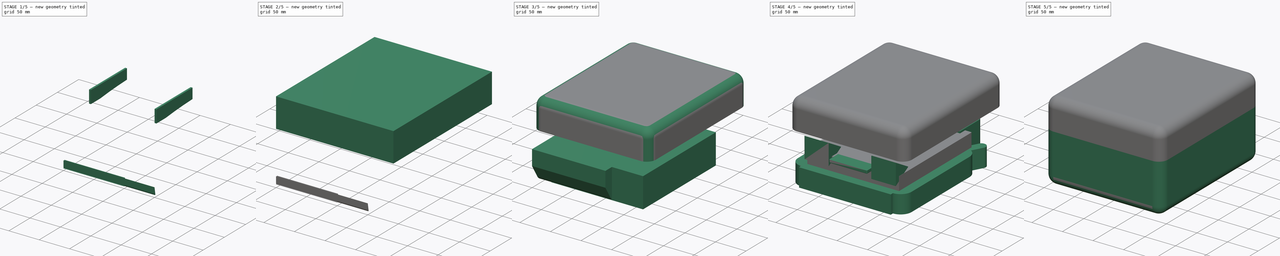
[diagram: build sequence overview — one tinted view per stage of 5, left to right]
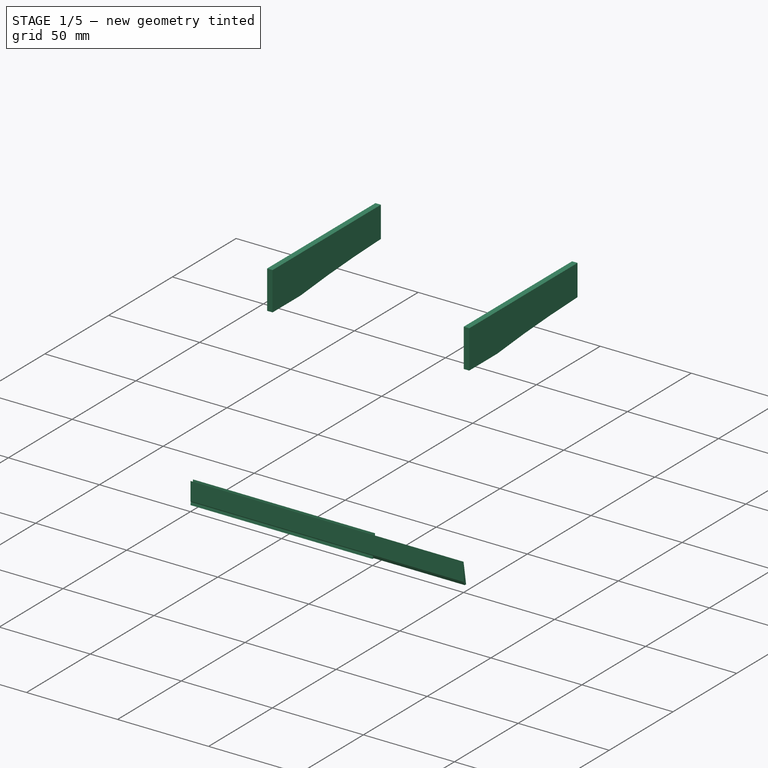
[diagram: stage 1 of 5 — iso view after this stage's code; geometry added in this stage tinted green]
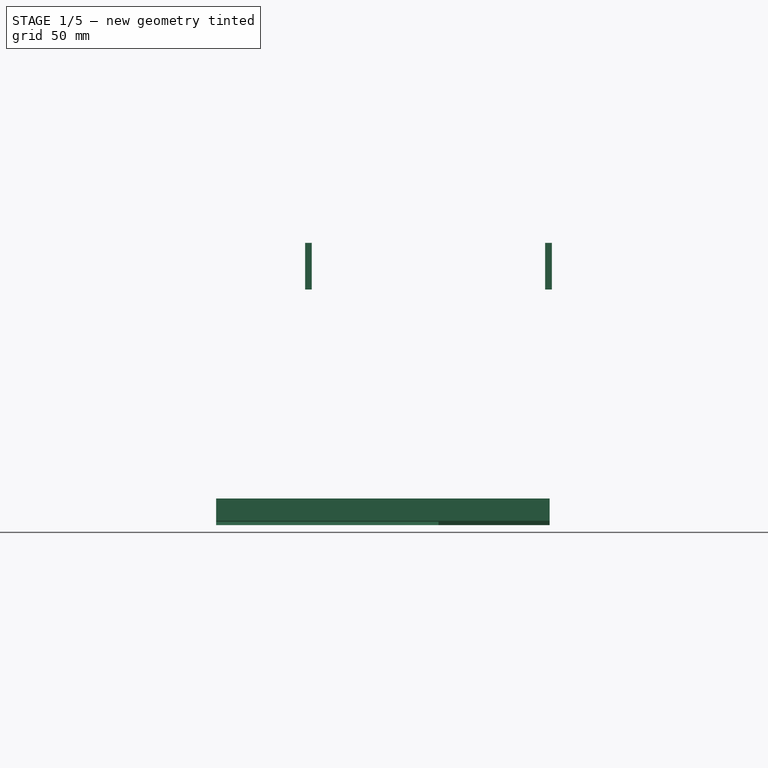
[diagram: stage 1 of 5 — front view after this stage's code; geometry added in this stage tinted green]
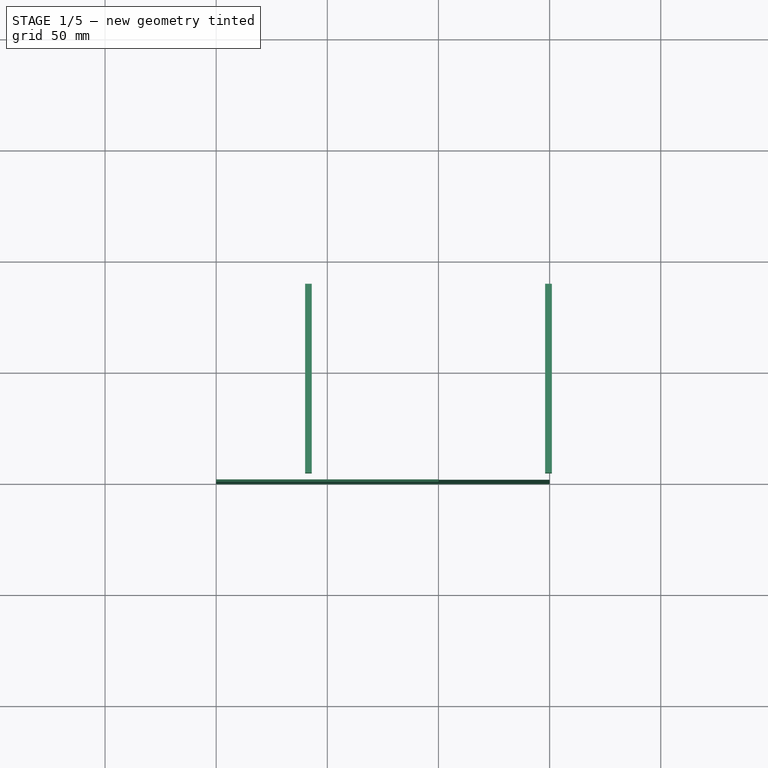
[diagram: stage 1 of 5 — top view after this stage's code; geometry added in this stage tinted green]
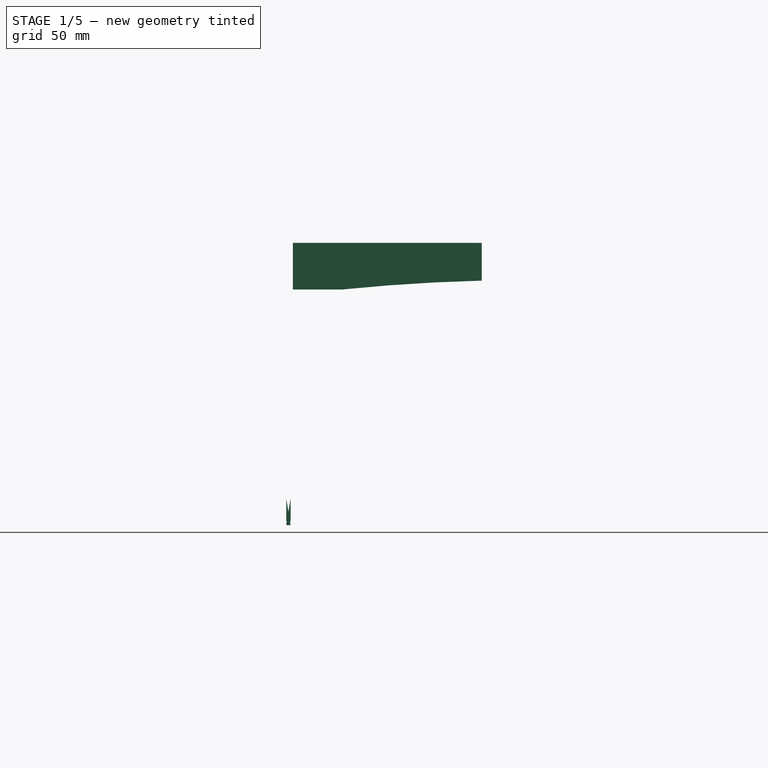
[diagram: stage 1 of 5 — right view after this stage's code; geometry added in this stage tinted green]
FCSTD DOCUMENT  (FreeCAD 0.18R14555 (Git shallow))
Label: JumperT16-HardCase-withInternalModule
License: All rights reserved
LicenseURL: http://en.wikipedia.org/wiki/All_rights_reserved
objects: PartDesign::Body×7, Sketcher::SketchObject×6, PartDesign::Pad×6, Part::Fillet×6, Part::Box×4, Part::MultiFuse×4, Image::ImagePlane×3, Part::Cut×3, Part::Prism×2, App::Part×2, App::FeaturePython×1, PartDesign::FeatureBase×1, Part::Chamfer×1
note: 46 computed .brp shape members not serialized (recipe doc carries the construction recipe); baked Part::Feature solids carry a one-line shape summary decoded from their .brp

FEATURE [Sketcher::SketchObject] Sketch004
  MapMode = 5
  Placement = pos=(0,0,0) rot=(0.57735,0.57735,0.57735;2.0944rad)
  Support = -> [YZ_Plane006]
  sketch-geometry (5):
    g0: LineSegment StartX=88 StartY=4 StartZ=0 EndX=88 EndY=21 EndZ=0
    g1: LineSegment StartX=88 StartY=21 StartZ=0 EndX=3 EndY=21 EndZ=0
    g2: ArcOfCircle CenterX=108.42 CenterY=-815.746 CenterZ=0 NormalX=0 NormalY=0 NormalZ=1 AngleXU=0 Radius=820 StartAngle=1.5957 EndAngle=1.6727
    g3: LineSegment StartX=3 StartY=21 StartZ=0 EndX=3 EndY=0 EndZ=0
    g4: LineSegment StartX=3 StartY=0 StartZ=0 EndX=25 EndY=0 EndZ=0
  constraints (16):
    c: Coincident(g0,g1)
    c: Horizontal(g1)
    c: Vertical(g0)
    c: Coincident(g2,g0)
    c: Radius(g2) = 820
    c: DistanceY(g2,g1) = 21
    c: DistanceY(g0,g0) = 17
    c: DistanceX(g-1,g1) = 3
    c: Coincident(g1,g3)
    c: Vertical(g3)
    c: Coincident(g3,g4)
    c: Coincident(g4,g2)
    c: Horizontal(g4)
    c: DistanceX(g1,g1) = 85
    c: PointOnObject(g3,g-1)
    c: DistanceX(g4,g4) = 22
FEATURE [PartDesign::Pad] Pad004
  Length = 3
  Length2 = 100
  Placement = pos=(0,0,0) rot=(0.57735,0.57735,0.57735;2.0944rad)
  Profile = -> Sketch004
  Type = 0
FEATURE [PartDesign::Body] Body004  label="LeftStand"
  Group = -> [Sketch004,Pad004]
  Origin = -> Origin006
  Placement = pos=(40,0,106) rot=(0,0,1;0rad)
  Tip = -> Pad004
FEATURE [PartDesign::FeatureBase] Clone
  BaseFeature = -> Body004
  Placement = pos=(40,0,106) rot=(0,0,1;0rad)
FEATURE [PartDesign::Body] Body005  label="RightStend"
  BaseFeature = -> Body004
  Group = -> [Clone]
  Origin = -> Origin007
  Placement = pos=(108,0,0) rot=(0,0,1;0rad)
  Tip = -> Clone
FEATURE [Part::MultiFuse] Fusion002
  Shapes = -> [Body005,Body004]
FEATURE [Sketcher::SketchObject] Sketch005
  MapMode = 5
  Placement = pos=(0,0,0) rot=(0.57735,0.57735,0.57735;2.0944rad)
  Support = -> [YZ_Plane008]
  sketch-geometry (4):
    g0: LineSegment StartX=0 StartY=12 StartZ=0 EndX=0 EndY=2 EndZ=0
    g1: LineSegment StartX=0 StartY=2 StartZ=0 EndX=1 EndY=0 EndZ=0
    g2: LineSegment StartX=1 StartY=0 StartZ=0 EndX=2 EndY=0 EndZ=0
    g3: LineSegment StartX=2 StartY=0 StartZ=0 EndX=0 EndY=12 EndZ=0
  constraints (12):
    c: Vertical(g0)
    c: Coincident(g0,g1)
    c: Coincident(g1,g2)
    c: Coincident(g2,g3)
    c: Coincident(g3,g0)
    c: Horizontal(g2)
    c: PointOnObject(g0,g-2)
    c: DistanceX(g1,g1) = 1
    c: DistanceX(g2,g2) = 1
    c: DistanceY(g0,g0) = 10
    c: DistanceY(g1,g1) = 2
    c: PointOnObject(g1,g-1)
FEATURE [PartDesign::Pad] Pad005
  Length = 150
  Length2 = 100
  Placement = pos=(0,0,0) rot=(0.57735,0.57735,0.57735;2.0944rad)
  Profile = -> Sketch005
  Type = 0
FEATURE [PartDesign::Body] Body006  label="LockLeader"
  Group = -> [Sketch005,Pad005]
  Origin = -> Origin008
  Placement = pos=(21,3,80) rot=(0,0,1;0rad)
  Tip = -> Pad005
FEATURE [Sketcher::SketchObject] Sketch007
  MapMode = 5
  Placement = pos=(0,0,0) rot=(0.57735,0.57735,0.57735;2.0944rad)
  Support = -> [YZ_Plane010]
  sketch-geometry (4):
    g0: LineSegment StartX=0 StartY=0 StartZ=0 EndX=2 EndY=12 EndZ=0
    g1: LineSegment StartX=2 StartY=12 StartZ=0 EndX=2 EndY=2 EndZ=0
    g2: LineSegment StartX=2 StartY=2 StartZ=0 EndX=1 EndY=0 EndZ=0
    g3: LineSegment StartX=1 StartY=0 StartZ=0 EndX=0 EndY=0 EndZ=0
  constraints (12):
    c: PointOnObject(g0,g-2)
    c: Coincident(g0,g1)
    c: Coincident(g1,g2)
    c: PointOnObject(g2,g-1)
    c: Coincident(g2,g3)
    c: Coincident(g3,g0)
    c: DistanceX(g2,g2) = 1
    c: DistanceX(g3,g3) = 1
    c: PointOnObject(g0,g-1)
    c: Vertical(g1)
    c: DistanceY(g1,g1) = 10
    c: DistanceY(g2,g2) = 2
FEATURE [PartDesign::Pad] Pad007
  Length = 100
  Length2 = 100
  Placement = pos=(0,0,0) rot=(0.57735,0.57735,0.57735;2.0944rad)
  Profile = -> Sketch007
  Type = 0
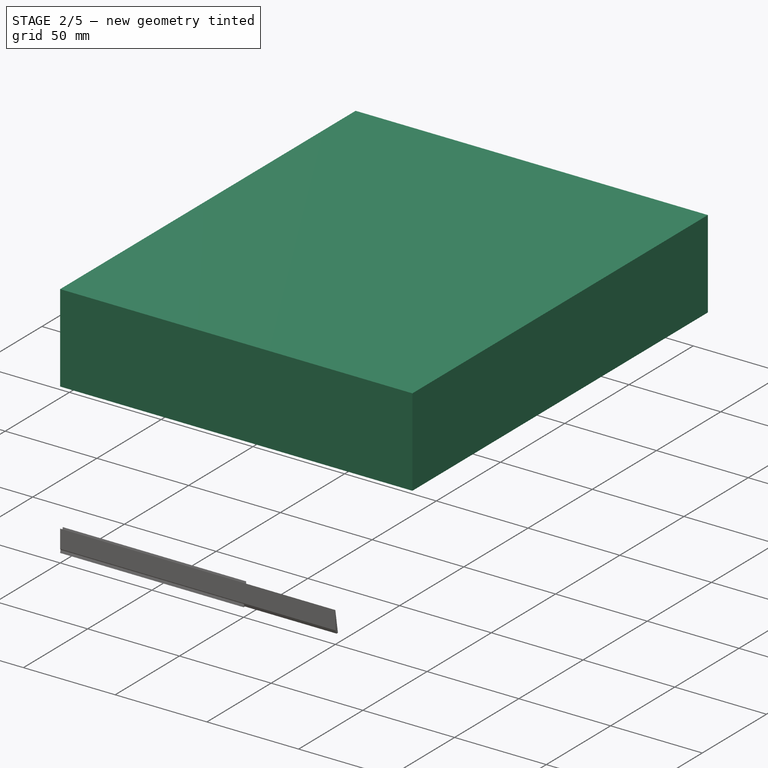
[diagram: stage 2 of 5 — iso view after this stage's code; geometry added in this stage tinted green]
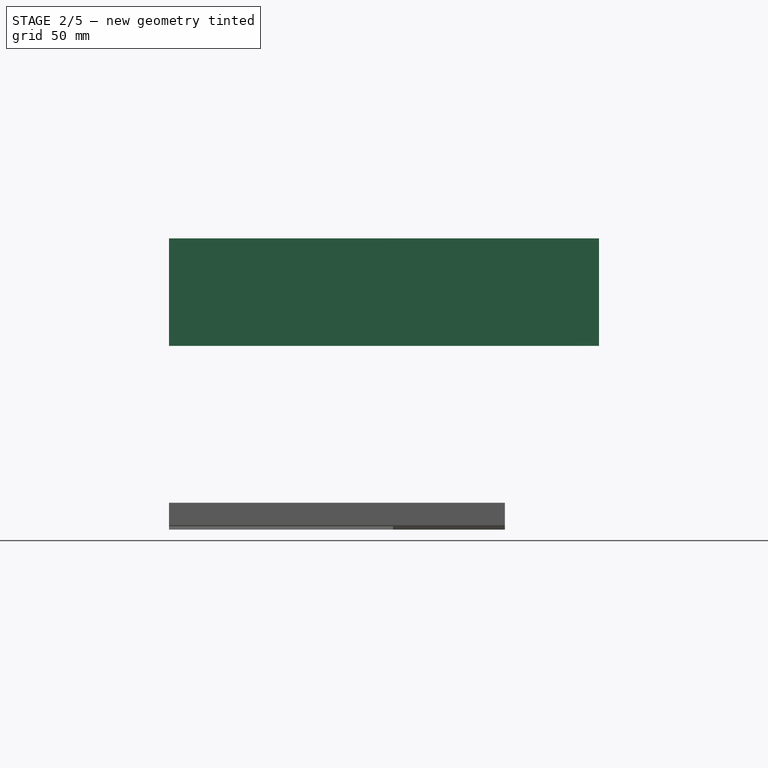
[diagram: stage 2 of 5 — front view after this stage's code; geometry added in this stage tinted green]
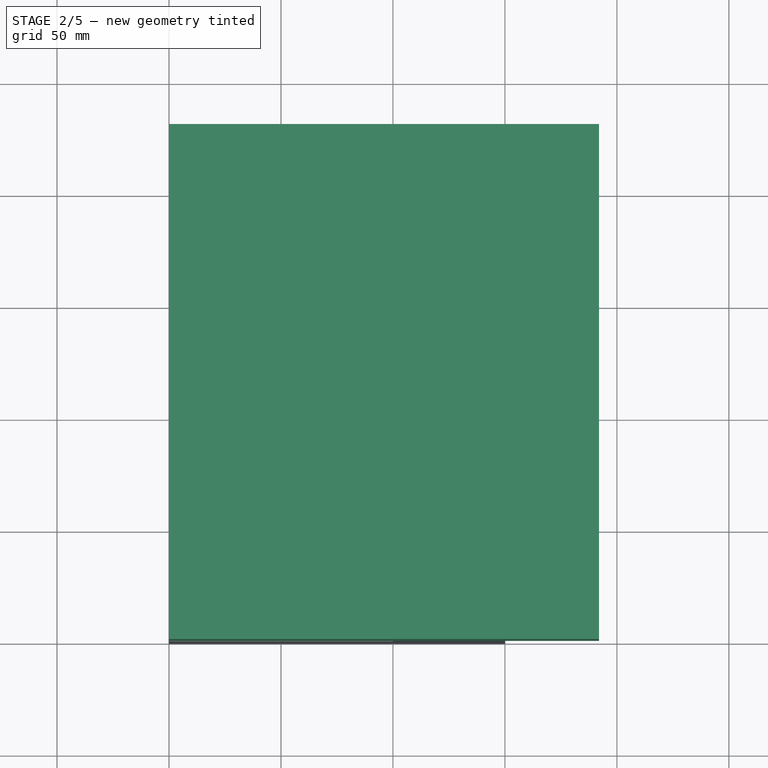
[diagram: stage 2 of 5 — top view after this stage's code; geometry added in this stage tinted green]
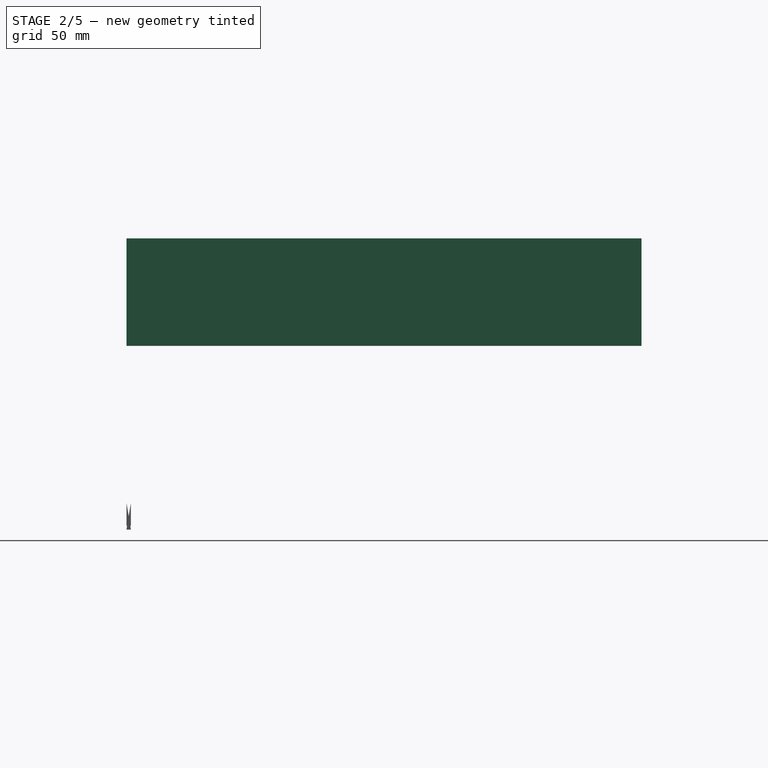
[diagram: stage 2 of 5 — right view after this stage's code; geometry added in this stage tinted green]
FEATURE [App::Part] Part  label="MainCase"
  Group = -> [Body,Box,Body001,Prism,Box004,Prism001,Box005,Fusion,Fillet,Fusion001,Cut,Fillet001,Fillet002]
  Origin = -> Origin
FEATURE [Sketcher::SketchObject] Sketch003
  MapMode = 5
  Support = -> [XY_Plane005]
  sketch-geometry (69):
    g0: LineSegment StartX=18 StartY=0 StartZ=0 EndX=168 EndY=0 EndZ=0
    g1: LineSegment StartX=168 StartY=0 StartZ=0 EndX=168 EndY=5 EndZ=0
    g2: LineSegment StartX=18 StartY=0 StartZ=0 EndX=18 EndY=5 EndZ=0
    g3: LineSegment StartX=0 StartY=206 StartZ=0 EndX=0 EndY=23 EndZ=0
    g4: LineSegment StartX=186 StartY=206 StartZ=0 EndX=186 EndY=23 EndZ=0
    g5: ArcOfCircle CenterX=18 CenterY=23 CenterZ=0 NormalX=0 NormalY=0 NormalZ=1 AngleXU=0 Radius=18 StartAngle=3.14159 EndAngle=4.71239
    g6: ArcOfCircle CenterX=168 CenterY=23 CenterZ=0 NormalX=0 NormalY=0 NormalZ=1 AngleXU=0 Radius=18 StartAngle=4.71239 EndAngle=6.28319
    g7: LineSegment StartX=18 StartY=224 StartZ=0 EndX=168 EndY=224 EndZ=0
    g8: LineSegment [constr] StartX=41.7862 StartY=197.933 StartZ=0 EndX=41.7862 EndY=179.848 EndZ=0
    g9: LineSegment [constr] StartX=41.7862 StartY=179.848 StartZ=0 EndX=24.2429 EndY=176.813 EndZ=0
    g10: LineSegment [constr] StartX=24.2429 StartY=176.813 StartZ=0 EndX=21.886 EndY=179.524 EndZ=0
    g11: LineSegment [constr] StartX=21.886 StartY=179.524 StartZ=0 EndX=20.2361 EndY=179.288 EndZ=0
    g12: LineSegment [constr] StartX=20.2361 StartY=179.288 StartZ=0 EndX=11.6334 EndY=197.2 EndZ=0
    g13: LineSegment [constr] StartX=11.6334 StartY=197.2 StartZ=0 EndX=6.80166 EndY=195.197 EndZ=0
    g14: LineSegment [constr] StartX=6.80166 StartY=195.197 StartZ=0 EndX=16.8186 EndY=178.227 EndZ=0
    g15: LineSegment [constr] StartX=16.8186 StartY=178.227 StartZ=0 EndX=14.6974 EndY=177.049 EndZ=0
    g16: LineSegment [constr] StartX=14.6974 StartY=177.049 StartZ=0 EndX=15.6401 EndY=173.513 EndZ=0
    g17: LineSegment [constr] StartX=15.6401 StartY=173.513 StartZ=0 EndX=8.09797 EndY=167.268 EndZ=0
    g18: LineSegment [constr] StartX=8.09797 StartY=167.268 StartZ=0 EndX=4.73388 EndY=158.953 EndZ=0
    g19: LineSegment [constr] StartX=4.73388 StartY=158.953 StartZ=0 EndX=2.37342 EndY=158.428 EndZ=0
    g20: LineSegment [constr] StartX=2.37342 StartY=158.428 StartZ=0 EndX=2.37342 EndY=154.494 EndZ=0
    g21: LineSegment [constr] StartX=2.37342 StartY=154.494 StartZ=0 EndX=4.20933 EndY=152.658 EndZ=0
    g22: LineSegment [constr] StartX=5.59753 StartY=23.9461 StartZ=0 EndX=8.66794 EndY=17.0639 EndZ=0
    g23: LineSegment [constr] StartX=8.66794 StartY=17.0639 StartZ=0 EndX=12.8643 EndY=12.6053 EndZ=0
    g24: LineSegment [constr] StartX=12.8643 StartY=12.6053 StartZ=0 EndX=17.0606 EndY=9.19575 EndZ=0
    g25: LineSegment [constr] StartX=17.0606 StartY=9.19575 StartZ=0 EndX=19.4599 EndY=8.73566 EndZ=0
    g26: LineSegment [constr] StartX=19.4599 StartY=8.73566 StartZ=0 EndX=21.604 EndY=8.365 EndZ=0
    g27: LineSegment [constr] StartX=21.604 StartY=8.365 StartZ=0 EndX=21.604 EndY=3.17661 EndZ=0
    g28: LineSegment [constr] StartX=21.604 StartY=3.17661 StartZ=0 EndX=165.419 EndY=3.17661 EndZ=0
    g29: LineSegment [constr] StartX=165.419 StartY=3.17661 StartZ=0 EndX=165.419 EndY=7.74008 EndZ=0
    g30: LineSegment [constr] StartX=165.419 StartY=7.74008 StartZ=0 EndX=168.889 EndY=8.71925 EndZ=0
    g31: LineSegment [constr] StartX=168.889 StartY=8.71925 StartZ=0 EndX=172.49 EndY=10.7314 EndZ=0
    g32: LineSegment [constr] StartX=172.49 StartY=10.7314 StartZ=0 EndX=175.931 EndY=13.8026 EndZ=0
    g33: LineSegment [constr] StartX=175.931 StartY=13.8026 StartZ=0 EndX=178.897 EndY=18.3035 EndZ=0
    g34: LineSegment [constr] StartX=178.897 StartY=18.3035 StartZ=0 EndX=180.432 EndY=21.7983 EndZ=0
    g35: LineSegment [constr] StartX=180.432 StartY=21.7983 StartZ=0 EndX=181.068 EndY=24.2341 EndZ=0
    g36: LineSegment [constr] StartX=181.068 StartY=24.2341 StartZ=0 EndX=184.207 EndY=25.0284 EndZ=0
    g37: LineSegment [constr] StartX=184.207 StartY=25.0284 StartZ=0 EndX=184.207 EndY=139.367 EndZ=0
    g38: LineSegment [constr] StartX=184.207 StartY=139.367 StartZ=0 EndX=182.976 EndY=141.639 EndZ=0
    g39: LineSegment [constr] StartX=182.976 StartY=141.639 StartZ=0 EndX=182.976 EndY=154.497 EndZ=0
    g40: LineSegment [constr] StartX=182.976 StartY=154.497 StartZ=0 EndX=181.852 EndY=158.291 EndZ=0
    g41: LineSegment [constr] StartX=181.852 StartY=158.291 StartZ=0 EndX=181.005 EndY=160.833 EndZ=0
    g42: LineSegment [constr] StartX=181.005 StartY=160.833 StartZ=0 EndX=182.488 EndY=162.209 EndZ=0
    g43: LineSegment [constr] StartX=182.488 StartY=162.209 StartZ=0 EndX=180.476 EndY=165.545 EndZ=0
    g44: LineSegment [constr] StartX=180.476 StartY=165.545 StartZ=0 EndX=178.887 EndY=165.175 EndZ=0
    g45: LineSegment [constr] StartX=178.887 StartY=165.175 StartZ=0 EndX=176.345 EndY=168.669 EndZ=0
    g46: LineSegment [constr] StartX=176.345 StartY=168.669 StartZ=0 EndX=173.377 EndY=172.069 EndZ=0
    g47: LineSegment [constr] StartX=173.377 StartY=172.069 StartZ=0 EndX=172.053 EndY=173.128 EndZ=0
    g48: LineSegment [constr] StartX=172.053 StartY=173.128 StartZ=0 EndX=172.53 EndY=175.935 EndZ=0
    g49: LineSegment [constr] StartX=172.53 StartY=175.935 StartZ=0 EndX=170.465 EndY=177.258 EndZ=0
    g50: LineSegment [constr] StartX=170.465 StartY=177.258 StartZ=0 EndX=180.899 EndY=194.633 EndZ=0
    g51: LineSegment [constr] StartX=180.899 StartY=194.633 StartZ=0 EndX=176.133 EndY=197.545 EndZ=0
    g52: LineSegment [constr] StartX=176.133 StartY=197.545 StartZ=0 EndX=167.872 EndY=178.959 EndZ=0
    g53: LineSegment [constr] StartX=167.872 StartY=178.959 StartZ=0 EndX=165.86 EndY=179.965 EndZ=0
    g54: LineSegment [constr] StartX=165.86 StartY=179.965 StartZ=0 EndX=163.259 EndY=176.378 EndZ=0
    g55: LineSegment [constr] StartX=163.259 StartY=176.378 StartZ=0 EndX=147.045 EndY=179.489 EndZ=0
    g56: LineSegment [constr] StartX=147.045 StartY=179.489 StartZ=0 EndX=147.085 EndY=198.178 EndZ=0
    g57: LineSegment [constr] StartX=41.7862 StartY=197.933 StartZ=0 EndX=88.19 EndY=197.933 EndZ=0
    g58: LineSegment [constr] StartX=88.19 StartY=197.933 StartZ=0 EndX=88.19 EndY=205.386 EndZ=0
    g59: LineSegment [constr] StartX=88.19 StartY=205.386 StartZ=0 EndX=91.9418 EndY=207.55 EndZ=0
    g60: LineSegment [constr] StartX=91.9418 StartY=207.55 StartZ=0 EndX=140.464 EndY=207.55 EndZ=0
    g61: LineSegment [constr] StartX=140.464 StartY=207.55 StartZ=0 EndX=146.843 EndY=207.217 EndZ=0
    g62: LineSegment [constr] StartX=146.843 StartY=207.217 StartZ=0 EndX=147.085 EndY=198.178 EndZ=0
    g63: LineSegment [constr] StartX=4.20933 StartY=152.658 StartZ=0 EndX=4.20933 EndY=141.238 EndZ=0
    g64: LineSegment [constr] StartX=4.20933 StartY=141.238 StartZ=0 EndX=2.8894 EndY=141.002 EndZ=0
    g65: LineSegment [constr] StartX=2.8894 StartY=141.002 StartZ=0 EndX=2.8894 EndY=26.5387 EndZ=0
    g66: LineSegment [constr] StartX=2.8894 StartY=26.5387 StartZ=0 EndX=5.59753 EndY=23.9461 EndZ=0
    g67: ArcOfCircle CenterX=18 CenterY=206 CenterZ=0 NormalX=0 NormalY=0 NormalZ=1 AngleXU=0 Radius=18 StartAngle=1.5708 EndAngle=3.14159
    g68: ArcOfCircle CenterX=168 CenterY=206 CenterZ=0 NormalX=0 NormalY=0 NormalZ=1 AngleXU=0 Radius=18 StartAngle=0 EndAngle=1.5708
  constraints (104):
    c: PointOnObject(g0,g-1)
    c: Horizontal(g0)
    c: Coincident(g1,g0)
    c: Coincident(g2,g0)
    c: Vertical(g2)
    c: Equal(g2,g1)
    c: Vertical(g1)
    c: PointOnObject(g3,g-2)
    c: PointOnObject(g3,g-2)
    c: Vertical(g4)
    c: Coincident(g5,g2)
    c: Coincident(g5,g3)
    c: Coincident(g6,g1)
    c: Coincident(g6,g4)
    c: Horizontal(g7)
    c: Vertical(g5,g2)
    c: Horizontal(g3,g5)
    c: Vertical(g6,g1)
    c: Horizontal(g6,g4)
    c: DistanceX(g-1,g0) = 18
    c: DistanceX(g0,g4) = 18
    c: DistanceX(g3,g4) = 186
    c: DistanceY(g2,g2) = 5
    c: Vertical(g8)
    c: Coincident(g8,g9)
    c: Coincident(g9,g10)
    c: Coincident(g10,g11)
    c: Coincident(g11,g12)
    c: Coincident(g12,g13)
    c: Coincident(g13,g14)
    c: Coincident(g14,g15)
    c: Coincident(g15,g16)
    c: Coincident(g16,g17)
    c: Coincident(g17,g18)
    c: Coincident(g18,g19)
    c: Coincident(g19,g20)
    c: Vertical(g20)
    c: Coincident(g20,g21)
    c: Coincident(g22,g23)
    c: Coincident(g23,g24)
    c: Coincident(g24,g25)
    c: Coincident(g25,g26)
    c: Coincident(g26,g27)
    c: Vertical(g27)
    c: Coincident(g27,g28)
    c: Horizontal(g28)
    c: Coincident(g28,g29)
    c: Vertical(g29)
    c: Coincident(g29,g30)
    c: Coincident(g30,g31)
    c: Coincident(g31,g32)
    c: Coincident(g32,g33)
    c: Coincident(g33,g34)
    c: Coincident(g34,g35)
    c: Coincident(g35,g36)
    c: Coincident(g36,g37)
    c: Vertical(g37)
    c: Coincident(g37,g38)
    c: Coincident(g38,g39)
    c: Vertical(g39)
    c: Coincident(g39,g40)
    c: Coincident(g40,g41)
    c: Coincident(g41,g42)
    c: Coincident(g42,g43)
    c: Coincident(g43,g44)
    c: Coincident(g44,g45)
    c: Coincident(g45,g46)
    c: Coincident(g46,g47)
    c: Coincident(g47,g48)
    c: Coincident(g48,g49)
    c: Coincident(g49,g50)
    c: Coincident(g50,g51)
    c: Coincident(g51,g52)
    c: Coincident(g52,g53)
    c: Coincident(g53,g54)
    c: Coincident(g54,g55)
    c: Coincident(g8,g57)
    c: Horizontal(g57)
    c: Coincident(g57,g58)
    c: Vertical(g58)
    c: Coincident(g58,g59)
    c: Coincident(g59,g60)
    c: Horizontal(g60)
    c: Coincident(g60,g61)
    c: Coincident(g61,g62)
    c: Coincident(g62,g56)
    c: Coincident(g21,g63)
    c: Vertical(g63)
    c: Coincident(g63,g64)
    c: Coincident(g64,g65)
    c: Vertical(g65)
    c: Coincident(g65,g66)
    c: Coincident(g66,g22)
    c: DistanceY(g-1,g7) = 224
    c: Coincident(g67,g3)
    c: Coincident(g67,g7)
    c: Coincident(g68,g7)
    c: Coincident(g68,g4)
    c: Horizontal(g68,g4)
    c: Vertical(g68,g7)
    c: Vertical(g67,g7)
    c: Horizontal(g3,g67)
    c: Radius(g68) = 18
    c: Radius(g67) = 18
FEATURE [PartDesign::Pad] Pad003
  Length = 45
  Length2 = 100
  Profile = -> Sketch003
  Type = 0
FEATURE [PartDesign::Body] Body003
  Group = -> [Sketch003,Pad003]
  Origin = -> Origin005
  Placement = pos=(3,3,82) rot=(0,0,1;0rad)
  Tip = -> Pad003
FEATURE [Part::Box] Box006  label="LodOuterShell"
  AttacherType = Attacher::AttachEngine3D
  Height = 48
  Length = 192
  Placement = pos=(0,0,82) rot=(0,0,1;0rad)
  Width = 230
FEATURE [Part::Cut] Cut001
  Base = -> Body003
  Tool = -> Fusion002
FEATURE [Part::Fillet] Fillet003
  Base = -> Cut001
  Edges = 8 edges r=15: [Edge4,Edge7,Edge10,Edge18,Edge19,Edge20,Edge26,Edge32]
FEATURE [Part::Fillet] Fillet004
  Base = -> Fillet003
  Edges = 2 edges r=15: [Edge31,Edge34]
FEATURE [Part::Cut] Cut002
  Base = -> Box006
  Tool = -> Fillet004
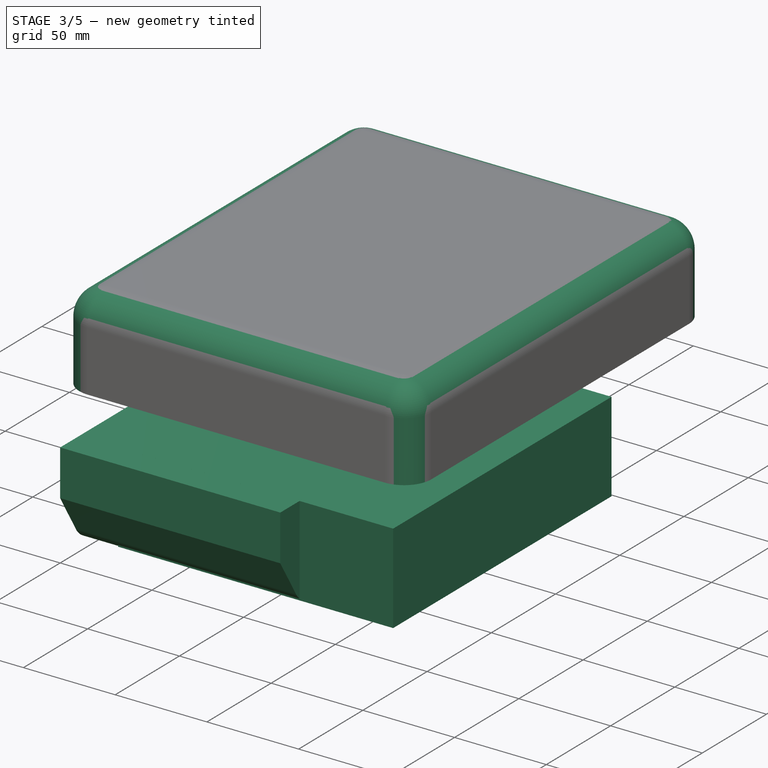
[diagram: stage 3 of 5 — iso view after this stage's code; geometry added in this stage tinted green]
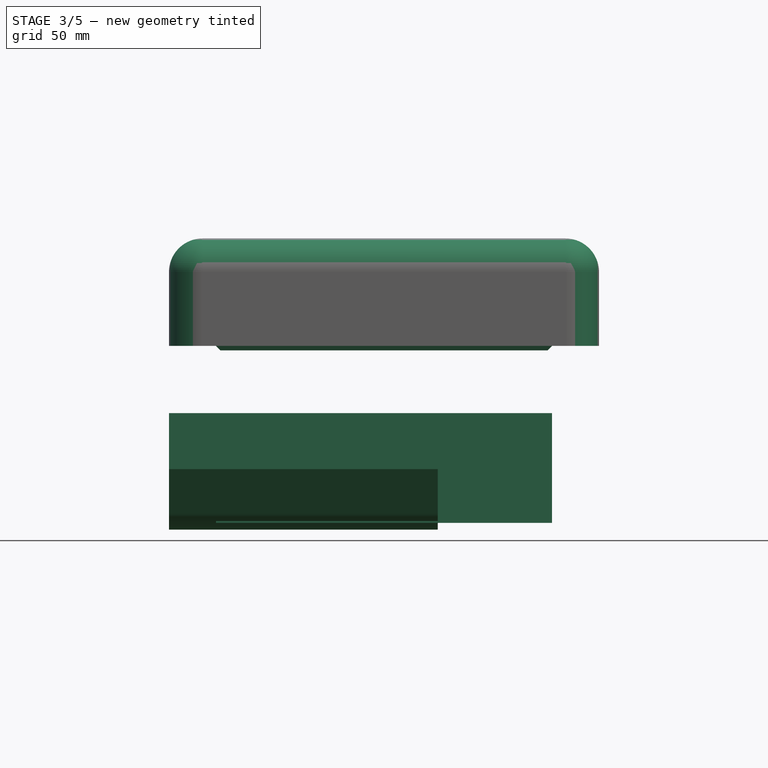
[diagram: stage 3 of 5 — front view after this stage's code; geometry added in this stage tinted green]
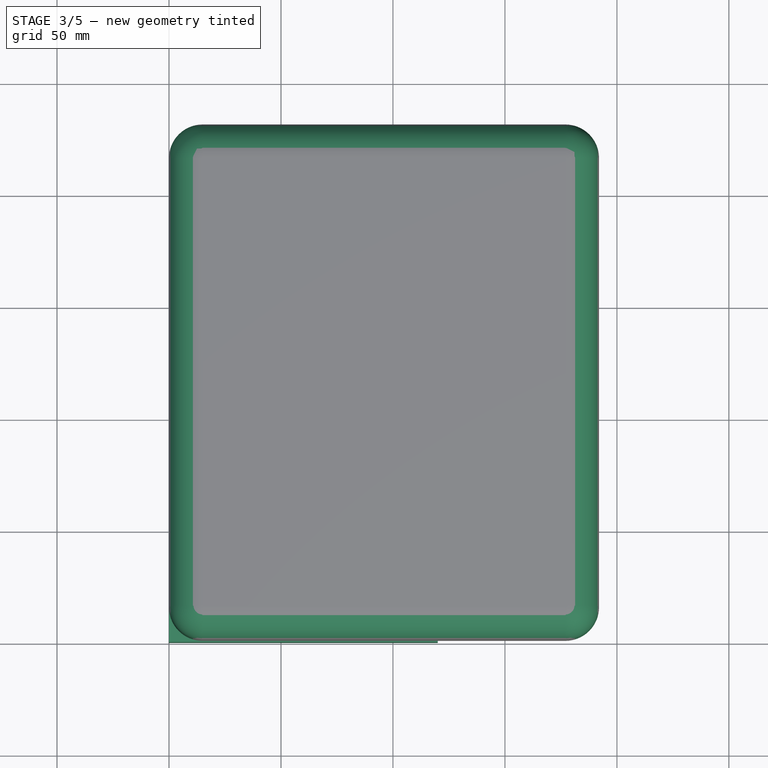
[diagram: stage 3 of 5 — top view after this stage's code; geometry added in this stage tinted green]
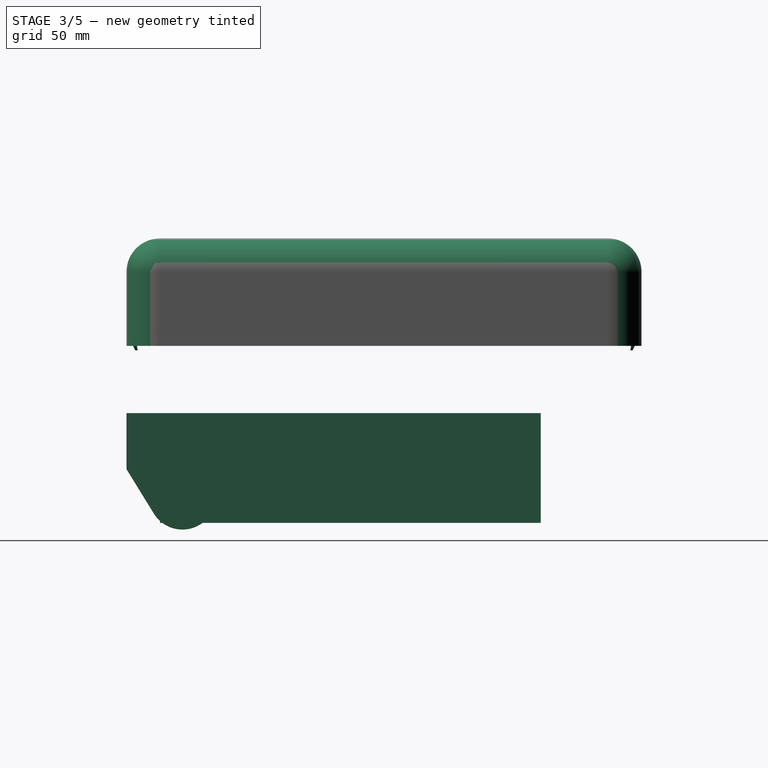
[diagram: stage 3 of 5 — right view after this stage's code; geometry added in this stage tinted green]
FEATURE [Sketcher::SketchObject] Sketch001
  MapMode = 5
  Placement = pos=(0,0,0) rot=(0.57735,0.57735,0.57735;2.0944rad)
  Support = -> [YZ_Plane003]
  sketch-geometry (6):
    g0: ArcOfCircle CenterX=25 CenterY=15 CenterZ=0 NormalX=0 NormalY=0 NormalZ=1 AngleXU=0 Radius=15 StartAngle=3.69335 EndAngle=6.28319
    g1: LineSegment StartX=0 StartY=27 StartZ=0 EndX=12.2259 EndY=7.13728 EndZ=0
    g2: LineSegment StartX=54 StartY=52 StartZ=0 EndX=0 EndY=52 EndZ=0
    g3: LineSegment StartX=0 StartY=52 StartZ=0 EndX=0 EndY=27 EndZ=0
    g4: LineSegment StartX=54 StartY=52 StartZ=0 EndX=54 EndY=15 EndZ=0
    g5: LineSegment StartX=54 StartY=15 StartZ=0 EndX=40 EndY=15 EndZ=0
  constraints (17):
    c: Radius(g0) = 15
    c: DistanceY(g-1,g0) = 15
    c: Horizontal(g0,g0)
    c: Horizontal(g2)
    c: Coincident(g2,g3)
    c: Coincident(g3,g1)
    c: DistanceY(g-1,g2) = 52
    c: DistanceX(g2,g2) = 54
    c: DistanceY(g3,g3) = 25
    c: Tangent(g1,g0) = -1.5708
    c: Tangent(g3,g-2)
    c: Coincident(g2,g4)
    c: Vertical(g4)
    c: Coincident(g4,g5)
    c: Coincident(g5,g0)
    c: Horizontal(g5)
    c: DistanceX(g-1,g0) = 25
FEATURE [PartDesign::Pad] Pad001
  Length = 120
  Length2 = 100
  Placement = pos=(0,0,0) rot=(0.57735,0.57735,0.57735;2.0944rad)
  Profile = -> Sketch001
  Type = 0
FEATURE [PartDesign::Body] Body001
  Group = -> [Sketch001,Pad001]
  Origin = -> Origin003
  Placement = pos=(40,173,3) rot=(0,0,1;0rad)
  Tip = -> Pad001
FEATURE [Part::Box] Box005  label="Куб"
  AttacherType = Attacher::AttachEngine3D
  Height = 49
  Length = 150
  Placement = pos=(21,15,3) rot=(0,0,1;0rad)
  Width = 170
FEATURE [Part::Fillet] Fillet005
  Base = -> Cut002
  Edges = 20 edges: [Edge1 r=15,Edge2 r=15,Edge3 r=15,Edge6 r=15,Edge7 r=15,Edge8 r=15,Edge9 r=15,Edge11 r=15,Edge27 r=1,Edge41 r=1,Edge79 r=1,Edge81 r=1,Edge83 r=1,Edge85 r=1,Edge88 r=1,Edge90 r=1,Edge92 r=1,Edge93 r=1,Edge95 r=1,Edge96 r=1]
FEATURE [PartDesign::Body] Body008  label="LockLead002"
  Group = -> [Sketch007,Pad007]
  Origin = -> Origin010
  Placement = pos=(50,225,80) rot=(0,0,1;0rad)
  Tip = -> Pad007
FEATURE [Part::MultiFuse] Fusion003
  Shapes = -> [Body006,Fillet005,Body008]
FEATURE [Part::Chamfer] Chamfer  label="Lid"
  Base = -> Fusion003
  Edges = 4 edges r=1.9: [Edge29,Edge30,Edge131,Edge134]
FEATURE [App::Part] Part001  label="TopCase"
  Group = -> [Body003,Box006,Body004,Body005,Fusion002,Cut001,Fillet003,Fillet004,Cut002,Fillet005,Body006,Fusion003,Body008,Chamfer]
  Origin = -> Origin001
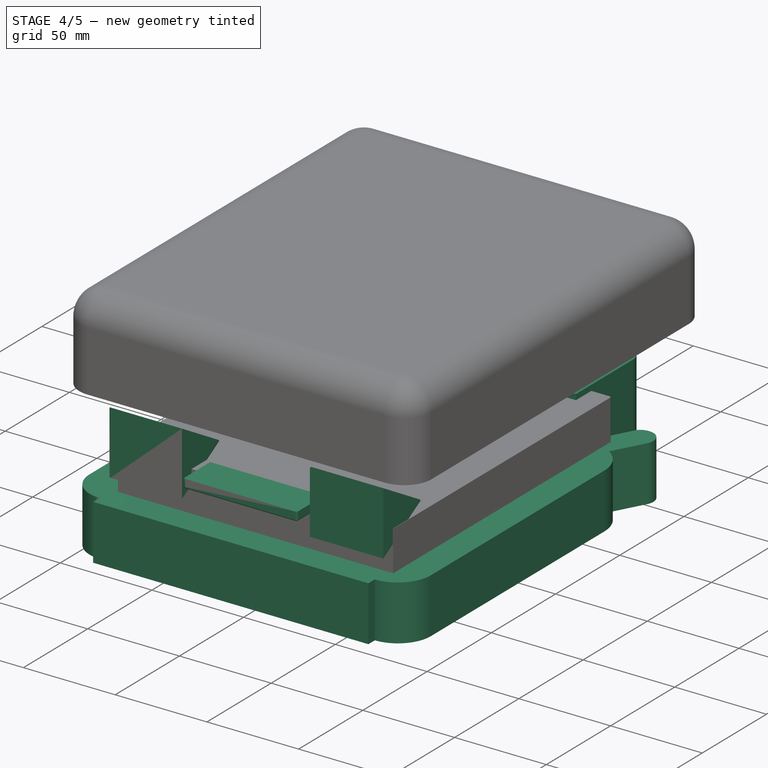
[diagram: stage 4 of 5 — iso view after this stage's code; geometry added in this stage tinted green]
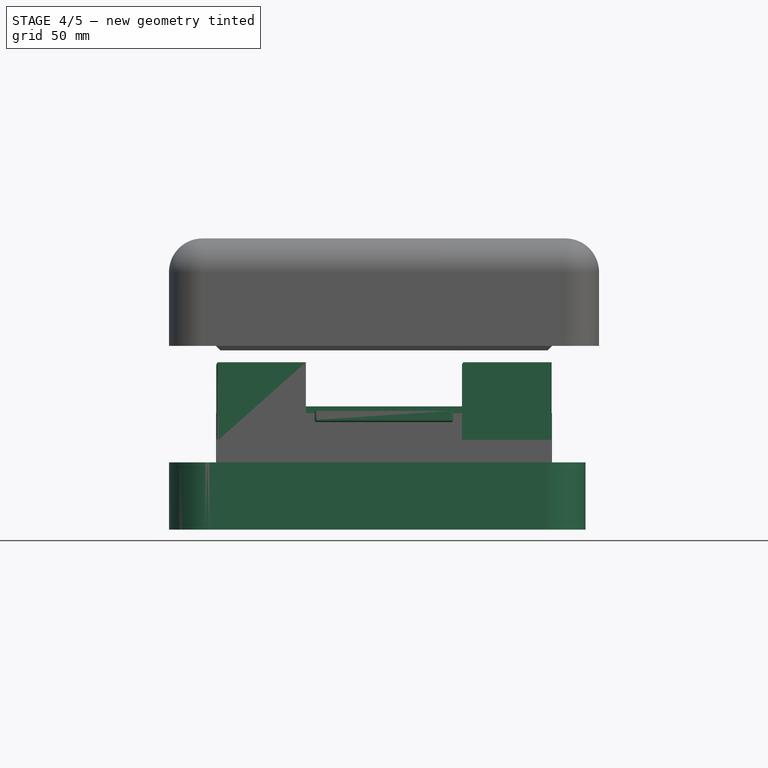
[diagram: stage 4 of 5 — front view after this stage's code; geometry added in this stage tinted green]
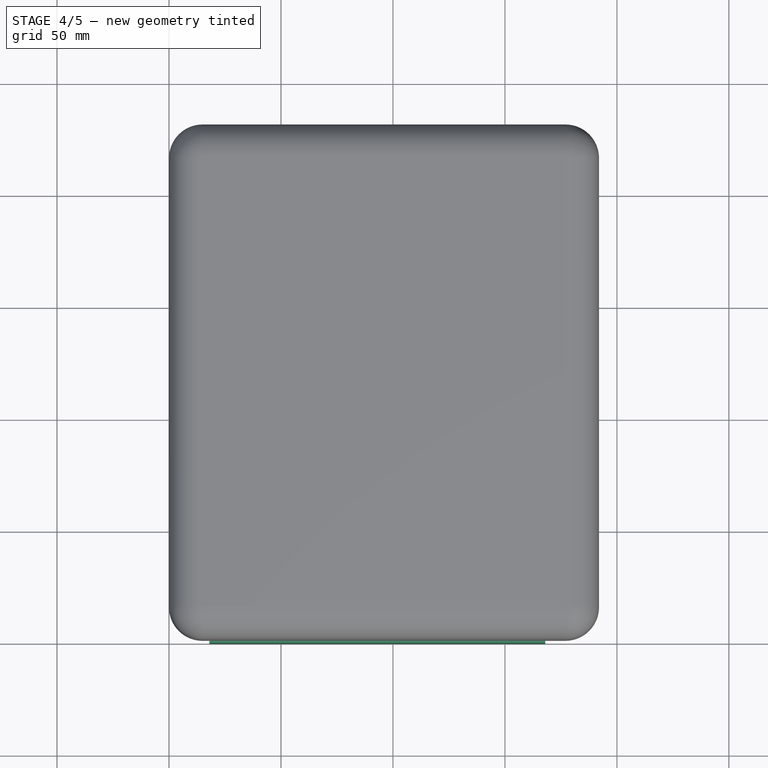
[diagram: stage 4 of 5 — top view after this stage's code; geometry added in this stage tinted green]
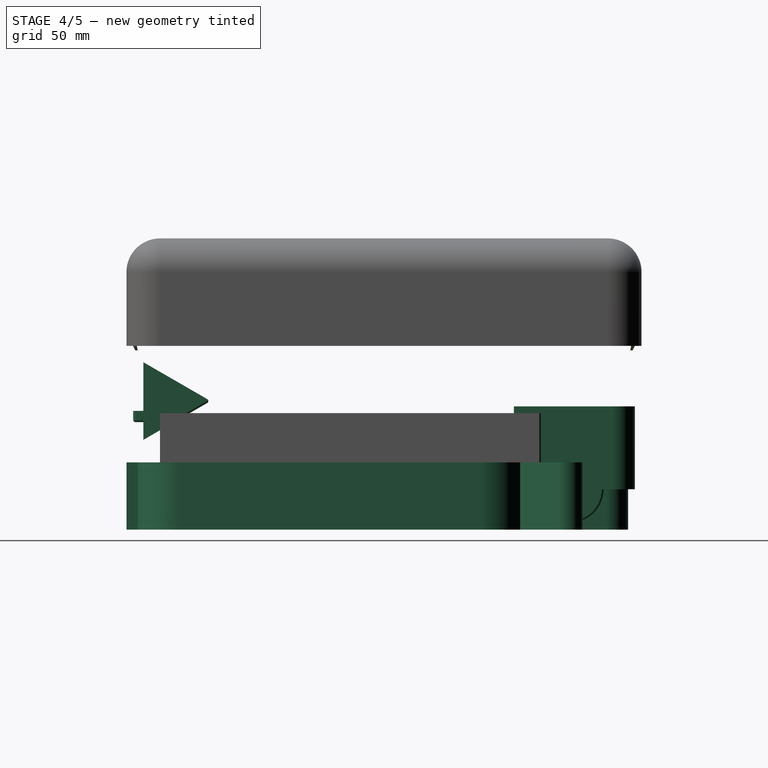
[diagram: stage 4 of 5 — right view after this stage's code; geometry added in this stage tinted green]
FEATURE [App::FeaturePython] dd  # WARN: FeaturePython — macro-defined, semantics opaque (R4)
  DynamicData = Created with DynamicData (v1.73) workbench. | This is a simple container object built | for holding custom properties.  Worbench | installation is not required to use the | container object -- instead only for | adding / removing custom properties. | (But this can also be done via scripting.)
FEATURE [Sketcher::SketchObject] Sketch
  MapMode = 5
  Support = -> [XY_Plane002]
  sketch-geometry (81):
    g0: LineSegment StartX=18 StartY=0 StartZ=0 EndX=168 EndY=0 EndZ=0
    g1: LineSegment StartX=168 StartY=0 StartZ=0 EndX=168 EndY=5 EndZ=0
    g2: LineSegment StartX=18 StartY=0 StartZ=0 EndX=18 EndY=5 EndZ=0
    g3: LineSegment StartX=0 StartY=157.876 StartZ=0 EndX=-7.1e-15 EndY=23 EndZ=0
    g4: LineSegment StartX=186 StartY=157.876 StartZ=0 EndX=186 EndY=23 EndZ=0
    g5: ArcOfCircle CenterX=18 CenterY=23 CenterZ=0 NormalX=0 NormalY=0 NormalZ=1 AngleXU=0 Radius=18 StartAngle=3.14159 EndAngle=4.71239
    g6: ArcOfCircle CenterX=168 CenterY=23 CenterZ=0 NormalX=0 NormalY=0 NormalZ=1 AngleXU=0 Radius=18 StartAngle=4.71239 EndAngle=6.28319
    g7: ArcOfCircle CenterX=164.856 CenterY=157.876 CenterZ=0 NormalX=0 NormalY=0 NormalZ=1 AngleXU=0 Radius=21.1441 StartAngle=0 EndAngle=1.01169
    g8: ArcOfCircle CenterX=21.1441 CenterY=157.876 CenterZ=0 NormalX=0 NormalY=0 NormalZ=1 AngleXU=0 Radius=21.1441 StartAngle=2.0865 EndAngle=3.14159
    g9: ArcOfCircle CenterX=147 CenterY=214 CenterZ=0 NormalX=0 NormalY=0 NormalZ=1 AngleXU=0 Radius=10 StartAngle=0 EndAngle=1.5708
    g10: ArcOfCircle CenterX=47 CenterY=214 CenterZ=0 NormalX=0 NormalY=0 NormalZ=1 AngleXU=0 Radius=10 StartAngle=1.5708 EndAngle=3.14159
    g11: ArcOfCircle CenterX=8.90541 CenterY=196.144 CenterZ=0 NormalX=0 NormalY=0 NormalZ=1 AngleXU=0 Radius=7.5 StartAngle=0.565942 EndAngle=3.55305
    g12: ArcOfCircle CenterX=178.49 CenterY=196.144 CenterZ=0 NormalX=0 NormalY=0 NormalZ=1 AngleXU=0 Radius=7.5 StartAngle=5.87536 EndAngle=8.6156
    g13: LineSegment StartX=10.7169 StartY=176.27 StartZ=0 EndX=2.03137 EndY=193.145 EndZ=0
    g14: LineSegment StartX=15.236 StartY=200.166 StartZ=0 EndX=23.8347 EndY=183.46 EndZ=0
    g15: LineSegment StartX=37 StartY=183.469 StartZ=0 EndX=37 EndY=214 EndZ=0
    g16: LineSegment StartX=47 StartY=224 StartZ=0 EndX=147 EndY=224 EndZ=0
    g17: LineSegment StartX=157 StartY=214 StartZ=0 EndX=157 EndY=183.564 EndZ=0
    g18: LineSegment StartX=163.669 StartY=183.564 StartZ=0 EndX=173.314 EndY=201.572 EndZ=0
    g19: LineSegment StartX=185.374 StartY=193.17 StartZ=0 EndX=176.071 EndY=175.8 EndZ=0
    g20: LineSegment [constr] StartX=41.7862 StartY=197.933 StartZ=0 EndX=41.7862 EndY=179.848 EndZ=0
    g21: LineSegment [constr] StartX=41.7862 StartY=179.848 StartZ=0 EndX=24.2429 EndY=176.813 EndZ=0
    g22: LineSegment [constr] StartX=24.2429 StartY=176.813 StartZ=0 EndX=21.886 EndY=179.524 EndZ=0
    g23: LineSegment [constr] StartX=21.886 StartY=179.524 StartZ=0 EndX=20.2361 EndY=179.288 EndZ=0
    g24: LineSegment [constr] StartX=20.2361 StartY=179.288 StartZ=0 EndX=11.6334 EndY=197.2 EndZ=0
    g25: LineSegment [constr] StartX=11.6334 StartY=197.2 StartZ=0 EndX=6.80166 EndY=195.197 EndZ=0
    g26: LineSegment [constr] StartX=6.80166 StartY=195.197 StartZ=0 EndX=16.8186 EndY=178.227 EndZ=0
    g27: LineSegment [constr] StartX=16.8186 StartY=178.227 StartZ=0 EndX=14.6974 EndY=177.049 EndZ=0
    g28: LineSegment [constr] StartX=14.6974 StartY=177.049 StartZ=0 EndX=15.6401 EndY=173.513 EndZ=0
    g29: LineSegment [constr] StartX=15.6401 StartY=173.513 StartZ=0 EndX=8.09797 EndY=167.268 EndZ=0
    g30: LineSegment [constr] StartX=8.09797 StartY=167.268 StartZ=0 EndX=4.73388 EndY=158.953 EndZ=0
    g31: LineSegment [constr] StartX=4.73388 StartY=158.953 StartZ=0 EndX=2.37342 EndY=158.428 EndZ=0
    g32: LineSegment [constr] StartX=2.37342 StartY=158.428 StartZ=0 EndX=2.37342 EndY=154.494 EndZ=0
    g33: LineSegment [constr] StartX=2.37342 StartY=154.494 StartZ=0 EndX=4.20933 EndY=152.658 EndZ=0
    g34: LineSegment [constr] StartX=5.59753 StartY=23.9461 StartZ=0 EndX=8.66794 EndY=17.0639 EndZ=0
    g35: LineSegment [constr] StartX=8.66794 StartY=17.0639 StartZ=0 EndX=12.8643 EndY=12.6053 EndZ=0
    g36: LineSegment [constr] StartX=12.8643 StartY=12.6053 StartZ=0 EndX=17.0606 EndY=9.19575 EndZ=0
    g37: LineSegment [constr] StartX=17.0606 StartY=9.19575 StartZ=0 EndX=19.4599 EndY=8.73566 EndZ=0
    g38: LineSegment [constr] StartX=19.4599 StartY=8.73566 StartZ=0 EndX=21.604 EndY=8.365 EndZ=0
    g39: LineSegment [constr] StartX=21.604 StartY=8.365 StartZ=0 EndX=21.604 EndY=3.17661 EndZ=0
    g40: LineSegment [constr] StartX=21.604 StartY=3.17661 StartZ=0 EndX=165.419 EndY=3.17661 EndZ=0
    g41: LineSegment [constr] StartX=165.419 StartY=3.17661 StartZ=0 EndX=165.419 EndY=7.74008 EndZ=0
    g42: LineSegment [constr] StartX=165.419 StartY=7.74008 StartZ=0 EndX=168.889 EndY=8.71925 EndZ=0
    g43: LineSegment [constr] StartX=168.889 StartY=8.71925 StartZ=0 EndX=172.49 EndY=10.7314 EndZ=0
    g44: LineSegment [constr] StartX=172.49 StartY=10.7314 StartZ=0 EndX=175.931 EndY=13.8026 EndZ=0
    g45: LineSegment [constr] StartX=175.931 StartY=13.8026 StartZ=0 EndX=178.897 EndY=18.3035 EndZ=0
    g46: LineSegment [constr] StartX=178.897 StartY=18.3035 StartZ=0 EndX=180.432 EndY=21.7983 EndZ=0
    g47: LineSegment [constr] StartX=180.432 StartY=21.7983 StartZ=0 EndX=181.068 EndY=24.2341 EndZ=0
    g48: LineSegment [constr] StartX=181.068 StartY=24.2341 StartZ=0 EndX=184.207 EndY=25.0284 EndZ=0
    g49: LineSegment [constr] StartX=184.207 StartY=25.0284 StartZ=0 EndX=184.207 EndY=139.367 EndZ=0
    g50: LineSegment [constr] StartX=184.207 StartY=139.367 StartZ=0 EndX=182.976 EndY=141.639 EndZ=0
    g51: LineSegment [constr] StartX=182.976 StartY=141.639 StartZ=0 EndX=182.976 EndY=154.497 EndZ=0
    g52: LineSegment [constr] StartX=182.976 StartY=154.497 StartZ=0 EndX=181.852 EndY=158.291 EndZ=0
    g53: LineSegment [constr] StartX=181.852 StartY=158.291 StartZ=0 EndX=181.005 EndY=160.833 EndZ=0
    g54: LineSegment [constr] StartX=181.005 StartY=160.833 StartZ=0 EndX=182.488 EndY=162.209 EndZ=0
    g55: LineSegment [constr] StartX=182.488 StartY=162.209 StartZ=0 EndX=180.476 EndY=165.545 EndZ=0
    g56: LineSegment [constr] StartX=180.476 StartY=165.545 StartZ=0 EndX=178.887 EndY=165.175 EndZ=0
    g57: LineSegment [constr] StartX=178.887 StartY=165.175 StartZ=0 EndX=176.345 EndY=168.669 EndZ=0
    g58: LineSegment [constr] StartX=176.345 StartY=168.669 StartZ=0 EndX=173.377 EndY=172.069 EndZ=0
    g59: LineSegment [constr] StartX=173.377 StartY=172.069 StartZ=0 EndX=172.053 EndY=173.128 EndZ=0
    g60: LineSegment [constr] StartX=172.053 StartY=173.128 StartZ=0 EndX=172.53 EndY=175.935 EndZ=0
    g61: LineSegment [constr] StartX=172.53 StartY=175.935 StartZ=0 EndX=170.465 EndY=177.258 EndZ=0
    g62: LineSegment [constr] StartX=170.465 StartY=177.258 StartZ=0 EndX=180.899 EndY=194.633 EndZ=0
    g63: LineSegment [constr] StartX=180.899 StartY=194.633 StartZ=0 EndX=176.133 EndY=197.545 EndZ=0
    g64: LineSegment [constr] StartX=176.133 StartY=197.545 StartZ=0 EndX=167.872 EndY=178.959 EndZ=0
    g65: LineSegment [constr] StartX=167.872 StartY=178.959 StartZ=0 EndX=165.86 EndY=179.965 EndZ=0
    g66: LineSegment [constr] StartX=165.86 StartY=179.965 StartZ=0 EndX=163.259 EndY=176.378 EndZ=0
    g67: LineSegment [constr] StartX=163.259 StartY=176.378 StartZ=0 EndX=147.045 EndY=179.489 EndZ=0
    g68: LineSegment [constr] StartX=147.045 StartY=179.489 StartZ=0 EndX=147.085 EndY=198.178 EndZ=0
    g69: LineSegment [constr] StartX=41.7862 StartY=197.933 StartZ=0 EndX=88.19 EndY=197.933 EndZ=0
    g70: LineSegment [constr] StartX=88.19 StartY=197.933 StartZ=0 EndX=88.19 EndY=205.386 EndZ=0
    g71: LineSegment [constr] StartX=88.19 StartY=205.386 StartZ=0 EndX=91.9418 EndY=207.55 EndZ=0
    g72: LineSegment [constr] StartX=91.9418 StartY=207.55 StartZ=0 EndX=140.464 EndY=207.55 EndZ=0
    g73: LineSegment [constr] StartX=140.464 StartY=207.55 StartZ=0 EndX=146.843 EndY=207.217 EndZ=0
    g74: LineSegment [constr] StartX=146.843 StartY=207.217 StartZ=0 EndX=147.085 EndY=198.178 EndZ=0
    g75: LineSegment [constr] StartX=4.20933 StartY=152.658 StartZ=0 EndX=4.20933 EndY=141.238 EndZ=0
    g76: LineSegment [constr] StartX=4.20933 StartY=141.238 StartZ=0 EndX=2.8894 EndY=141.002 EndZ=0
    g77: LineSegment [constr] StartX=2.8894 StartY=141.002 StartZ=0 EndX=2.8894 EndY=26.5387 EndZ=0
    g78: LineSegment [constr] StartX=2.8894 StartY=26.5387 StartZ=0 EndX=5.59753 EndY=23.9461 EndZ=0
    g79: LineSegment StartX=23.8347 StartY=183.46 StartZ=0 EndX=37 EndY=183.469 EndZ=0
    g80: LineSegment StartX=163.669 StartY=183.564 StartZ=0 EndX=157 EndY=183.564 EndZ=0
  constraints (130):
    c: PointOnObject(g0,g-1)
    c: Horizontal(g0)
    c: Coincident(g1,g0)
    c: Coincident(g2,g0)
    c: Vertical(g2)
    c: Equal(g2,g1)
    c: Vertical(g1)
    c: PointOnObject(g3,g-2)
    c: PointOnObject(g3,g-2)
    c: Vertical(g4)
    c: Coincident(g5,g2)
    c: Coincident(g5,g3)
    c: Coincident(g6,g1)
    c: Coincident(g6,g4)
    c: Coincident(g7,g4)
    c: Coincident(g8,g3)
    c: Coincident(g13,g8)
    c: Coincident(g13,g11)
    c: Coincident(g14,g11)
    c: Coincident(g15,g10)
    c: Coincident(g16,g10)
    c: Horizontal(g16)
    c: Coincident(g17,g9)
    c: Coincident(g18,g12)
    c: Coincident(g19,g12)
    c: Coincident(g19,g7)
    c: Vertical(g15)
    c: Vertical(g17)
    c: Parallel(g18,g19)
    c: Parallel(g13,g14)
    c: Horizontal(g9,g9)
    c: Vertical(g9,g9)
    c: Equal(g7,g8)
    c: Horizontal(g7,g4)
    c: Horizontal(g8,g3)
    c: Horizontal(g8,g7)
    c: Vertical(g5,g2)
    c: Horizontal(g3,g5)
    c: Vertical(g6,g1)
    c: Horizontal(g6,g4)
    c: DistanceX(g-1,g0) = 18
    c: DistanceX(g0,g4) = 18
    c: DistanceX(g3,g4) = 186
    c: DistanceY(g2,g2) = 5
    c: Vertical(g20)
    c: Coincident(g20,g21)
    c: Coincident(g21,g22)
    c: Coincident(g22,g23)
    c: Coincident(g23,g24)
    c: Coincident(g24,g25)
    c: Coincident(g25,g26)
    c: Coincident(g26,g27)
    c: Coincident(g27,g28)
    c: Coincident(g28,g29)
    c: Coincident(g29,g30)
    c: Coincident(g30,g31)
    c: Coincident(g31,g32)
    c: Vertical(g32)
    c: Coincident(g32,g33)
    c: Coincident(g34,g35)
    c: Coincident(g35,g36)
    c: Coincident(g36,g37)
    c: Coincident(g37,g38)
    c: Coincident(g38,g39)
    c: Vertical(g39)
    c: Coincident(g39,g40)
    c: Horizontal(g40)
    c: Coincident(g40,g41)
    c: Vertical(g41)
    c: Coincident(g41,g42)
    c: Coincident(g42,g43)
    c: Coincident(g43,g44)
    c: Coincident(g44,g45)
    c: Coincident(g45,g46)
    c: Coincident(g46,g47)
    c: Coincident(g47,g48)
    c: Coincident(g48,g49)
    c: Vertical(g49)
    c: Coincident(g49,g50)
    c: Coincident(g50,g51)
    c: Vertical(g51)
    c: Coincident(g51,g52)
    c: Coincident(g52,g53)
    c: Coincident(g53,g54)
    c: Coincident(g54,g55)
    c: Coincident(g55,g56)
    c: Coincident(g56,g57)
    c: Coincident(g57,g58)
    c: Coincident(g58,g59)
    c: Coincident(g59,g60)
    c: Coincident(g60,g61)
    c: Coincident(g61,g62)
    c: Coincident(g62,g63)
    c: Coincident(g63,g64)
    c: Coincident(g64,g65)
    c: Coincident(g65,g66)
    c: Coincident(g66,g67)
    c: Coincident(g20,g69)
    c: Horizontal(g69)
    c: Coincident(g69,g70)
    c: Vertical(g70)
    c: Coincident(g70,g71)
    c: Coincident(g71,g72)
    c: Horizontal(g72)
    c: Coincident(g72,g73)
    c: Coincident(g73,g74)
    c: Coincident(g74,g68)
    c: Coincident(g33,g75)
    c: Vertical(g75)
    c: Coincident(g75,g76)
    c: Coincident(g76,g77)
    c: Vertical(g77)
    c: Coincident(g77,g78)
    c: Coincident(g78,g34)
    c: Horizontal(g11,g12)
    c: Coincident(g79,g14)
    c: Coincident(g79,g15)
    c: Coincident(g80,g18)
    c: Coincident(g80,g17)
    c: Equal(g11,g12)
    c: Radius(g11) = 7.5
    c: Equal(g9,g10)
    c: Radius(g9) = 10
    c: Horizontal(g10,g10)
    c: Vertical(g10,g10)
    c: DistanceX(g10,g9) = 120
    c: DistanceX(g-1,g10) = 37
    c: Coincident(g16,g9)
    c: DistanceY(g-1,g10) = 224
    c: Horizontal(g80)
FEATURE [Image::ImagePlane] ImagePlane  label="frontView"
  Placement = pos=(119.85,107.98,0) rot=(0,0,1;6.26573rad)
  XSize = 244.445
  YSize = 215.687
FEATURE [Image::ImagePlane] ImagePlane001  label="SideViewLeft"
  Placement = pos=(1.6e-14,102.733,68.995) rot=(0.01745,-0.999695,0.01745;4.71208rad)
  XSize = 191.624
  YSize = 225.327
FEATURE [Image::ImagePlane] ImagePlane002  label="SideViewRight"
  Placement = pos=(0,112.672,34.905) rot=(-0.02181,-0.999524,-0.02181;4.71191rad)
  XSize = 191.748
  YSize = 225.473
FEATURE [Part::Prism] Prism  label="Призма"
  AttacherType = Attacher::AttachEngine3D
  Circumradius = 20
  Height = 40
  Placement = pos=(21.1,17.57,57.3923) rot=(0.57735,0.57735,0.57735;2.0944rad)
  Polygon = 3
FEATURE [PartDesign::Pad] Pad
  Length = 30
  Length2 = 100
  Profile = -> Sketch
  Type = 0
FEATURE [PartDesign::Body] Body
  Group = -> [Sketch,Pad]
  Origin = -> Origin002
  Placement = pos=(3,3,52) rot=(0,0,1;0rad)
  Tip = -> Pad
FEATURE [Part::Box] Box004  label="Куб003"
  AttacherType = Attacher::AttachEngine3D
  Height = 5
  Length = 62
  Placement = pos=(65,3,48) rot=(0,0,1;0rad)
  Width = 21
FEATURE [Part::Prism] Prism001  label="Призма001"
  AttacherType = Attacher::AttachEngine3D
  Circumradius = 20
  Height = 40
  Placement = pos=(130.85,17.57,57.39) rot=(0.57735,0.57735,0.57735;2.0944rad)
  Polygon = 3
FEATURE [Part::MultiFuse] Fusion
  Shapes = -> [Box004,Box005,Prism001,Prism,Body001]
FEATURE [Part::Fillet] Fillet
  Base = -> Fusion
  Edges = 25 edges: [Edge5 r=1,Edge6 r=1,Edge40 r=1,Edge41 r=1,Edge42 r=1,Edge43 r=1,Edge44 r=1,Edge48 r=1,Edge49 r=1,Edge50 r=10,Edge52 r=1,Edge54 r=10,Edge58 r=10,Edge61 r=1,Edge63 r=1,Edge64 r=1,Edge68 r=1,Edge69 r=1,Edge72 r=1,Edge73 r=1,Edge77 r=1,Edge78 r=1,Edge80 r=1,Edge81 r=1,Edge82 r=1]
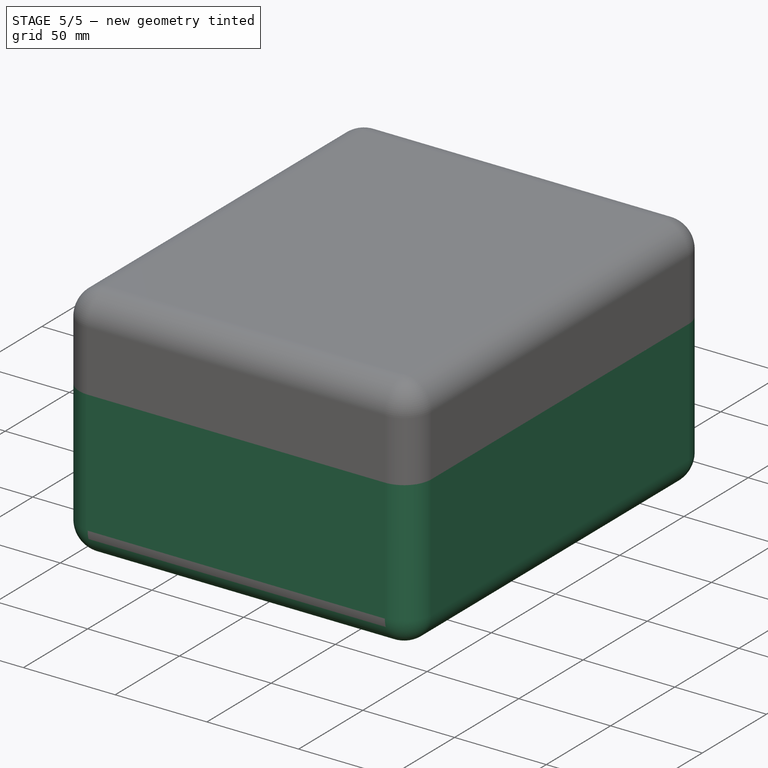
[diagram: stage 5 of 5 — iso view after this stage's code; geometry added in this stage tinted green]
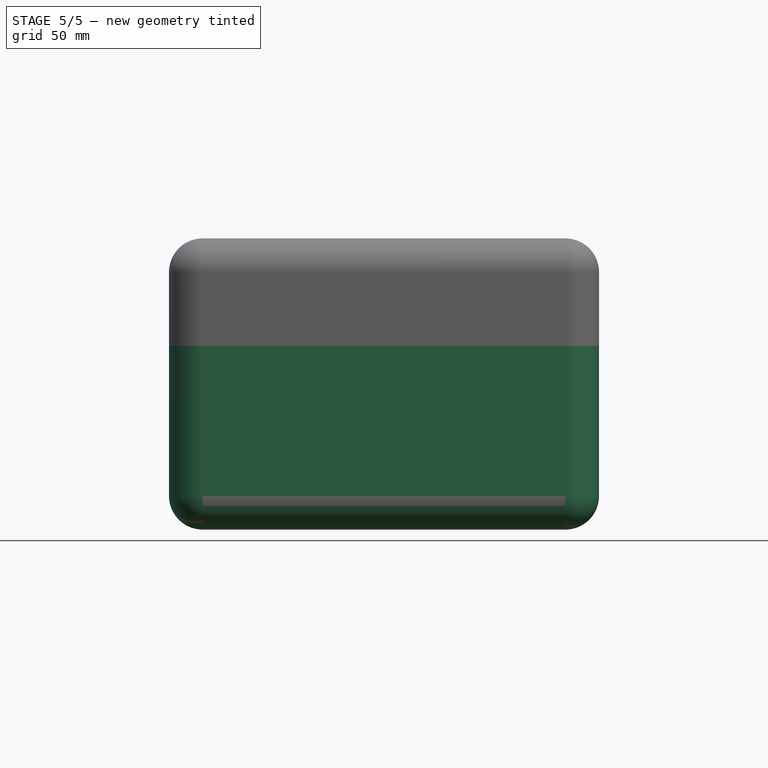
[diagram: stage 5 of 5 — front view after this stage's code; geometry added in this stage tinted green]
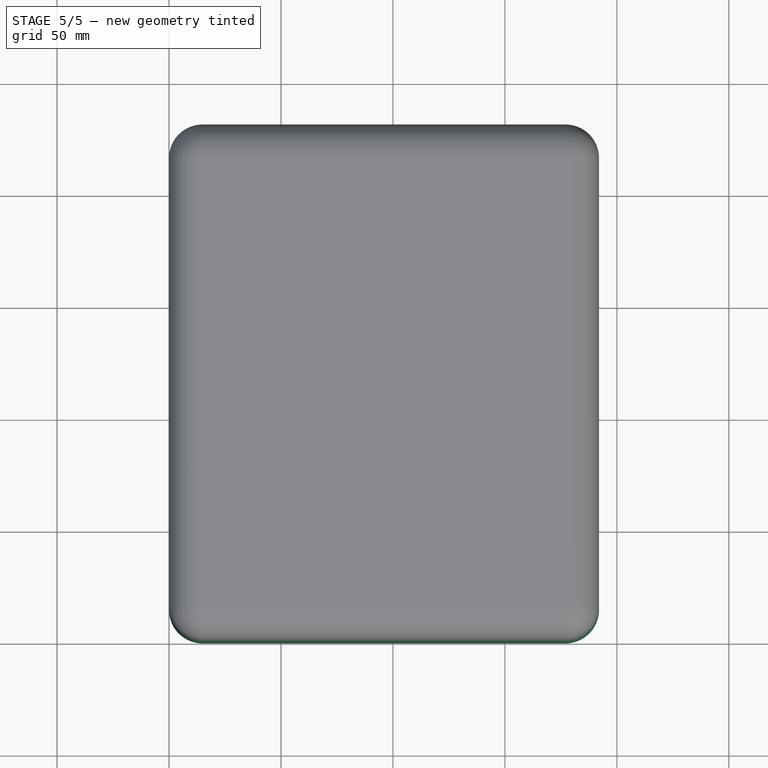
[diagram: stage 5 of 5 — top view after this stage's code; geometry added in this stage tinted green]
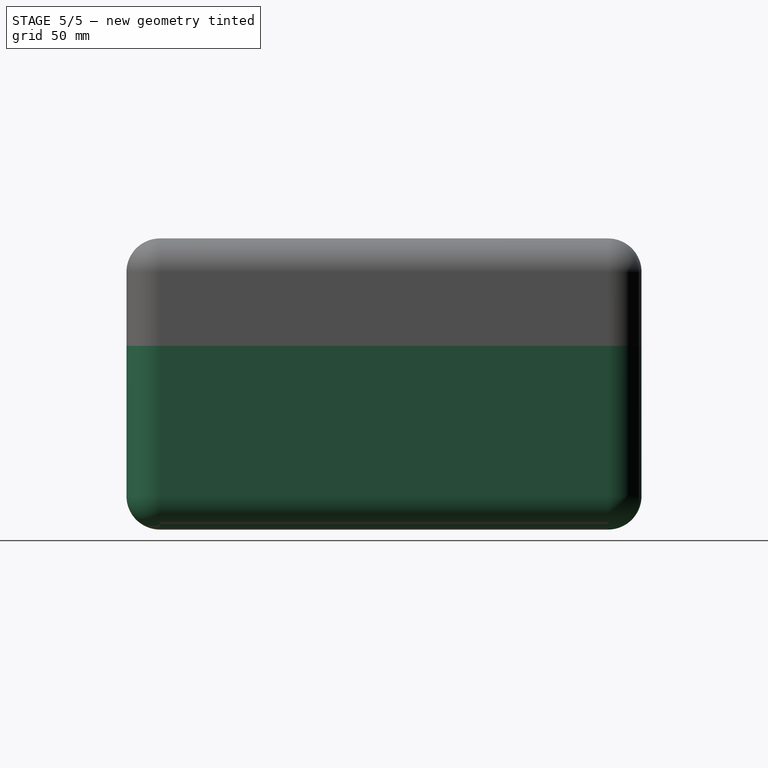
[diagram: stage 5 of 5 — right view after this stage's code; geometry added in this stage tinted green]
FEATURE [Part::Box] Box  label="OuterShell"
  AttacherType = Attacher::AttachEngine3D
  Height = 82
  Length = 192
  Width = 230
FEATURE [Part::MultiFuse] Fusion001
  Shapes = -> [Fillet,Body]
FEATURE [Part::Cut] Cut
  Base = -> Box
  Tool = -> Fusion001
FEATURE [Part::Fillet] Fillet001  label="InternalFilets"
  Base = -> Cut
  Edges = 4 edges r=1: [Edge35,Edge56,Edge62,Edge77]
FEATURE [Part::Fillet] Fillet002  label="MainCaseBottom"
  Base = -> Fillet001
  Edges = 8 edges r=15: [Edge89,Edge90,Edge91,Edge92,Edge93,Edge94,Edge95,Edge96]
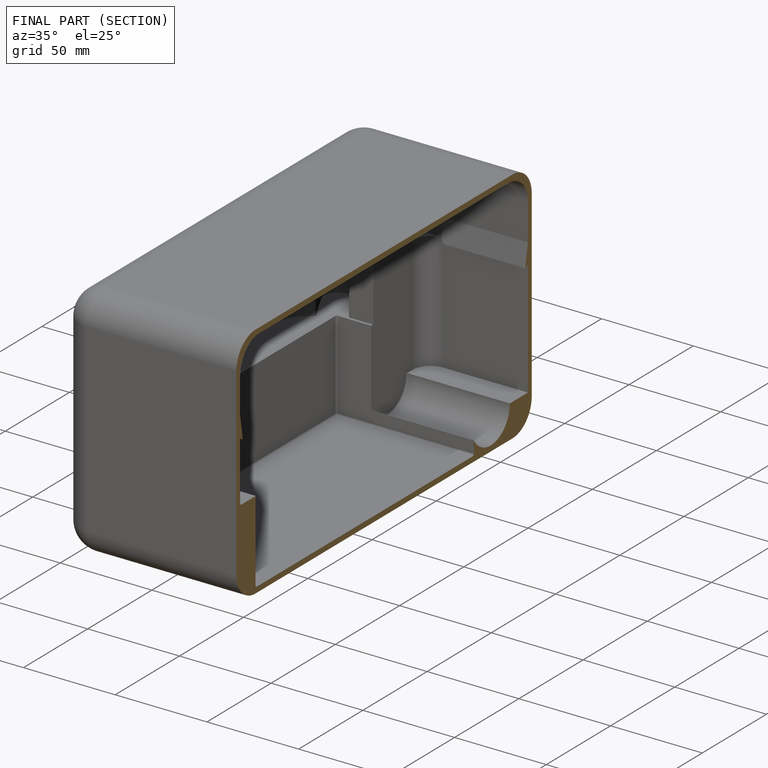
[diagram: finished part — half-section view (interior)]
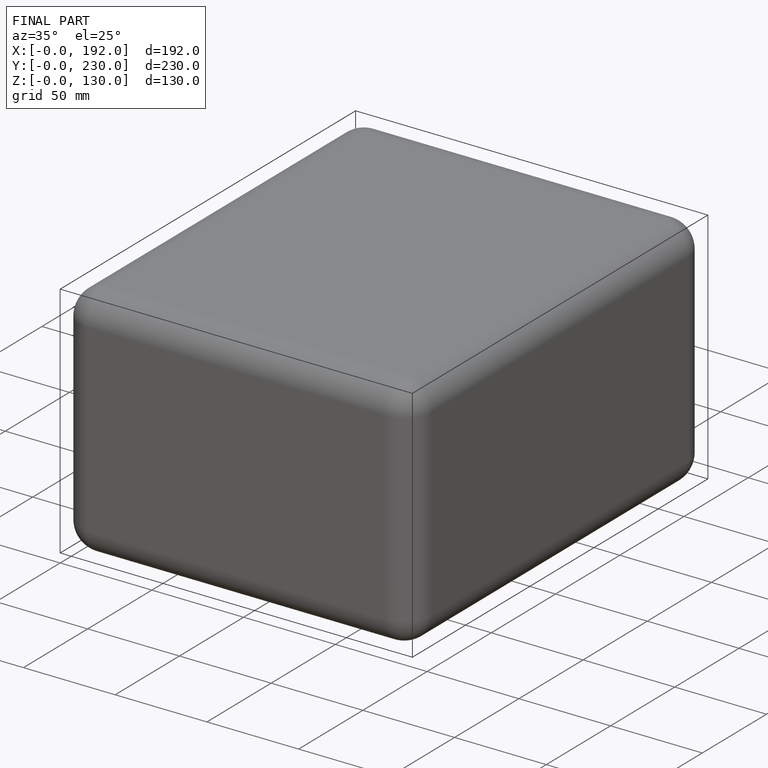
[diagram: finished part — iso view with bounding-box wireframe]
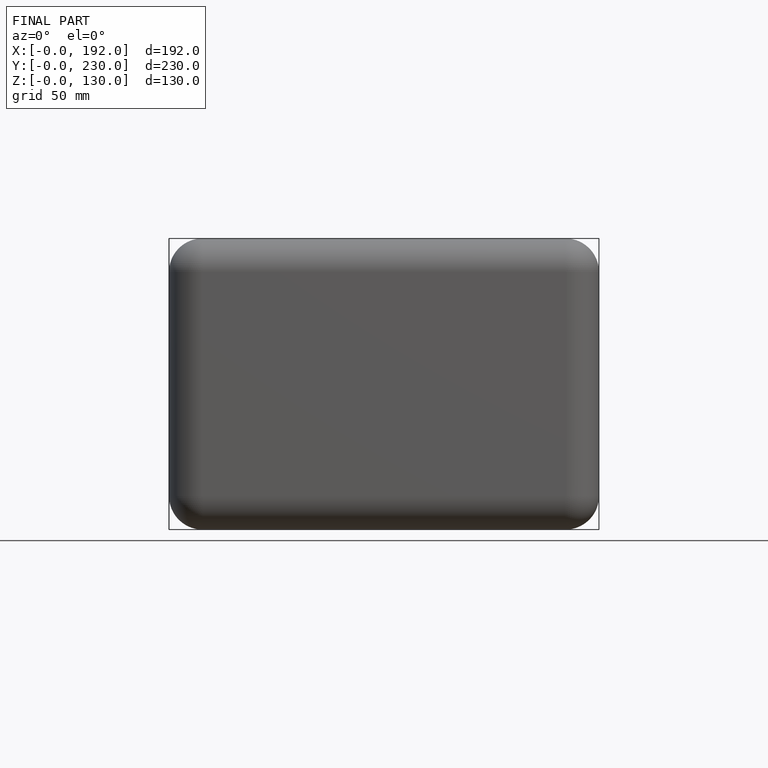
[diagram: finished part — front view with bounding-box wireframe]
